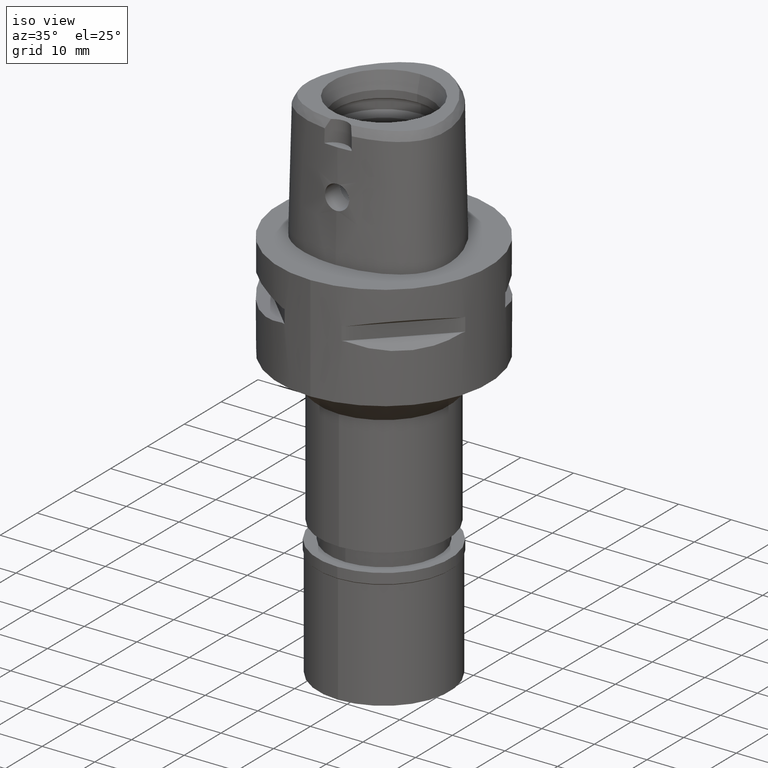
[diagram: clean part render]
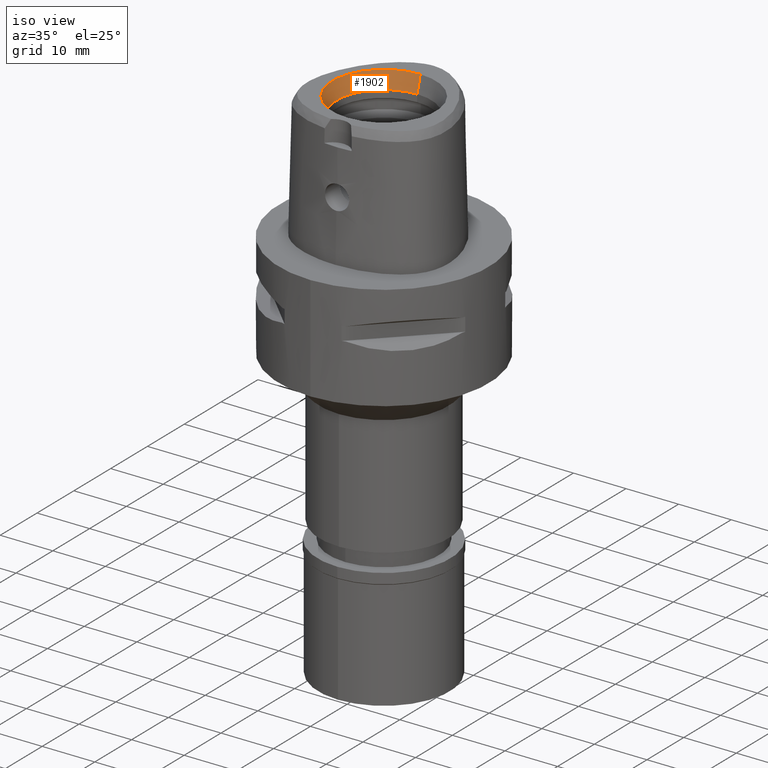
[diagram: same view with one face highlighted and labeled with its STEP entity id]
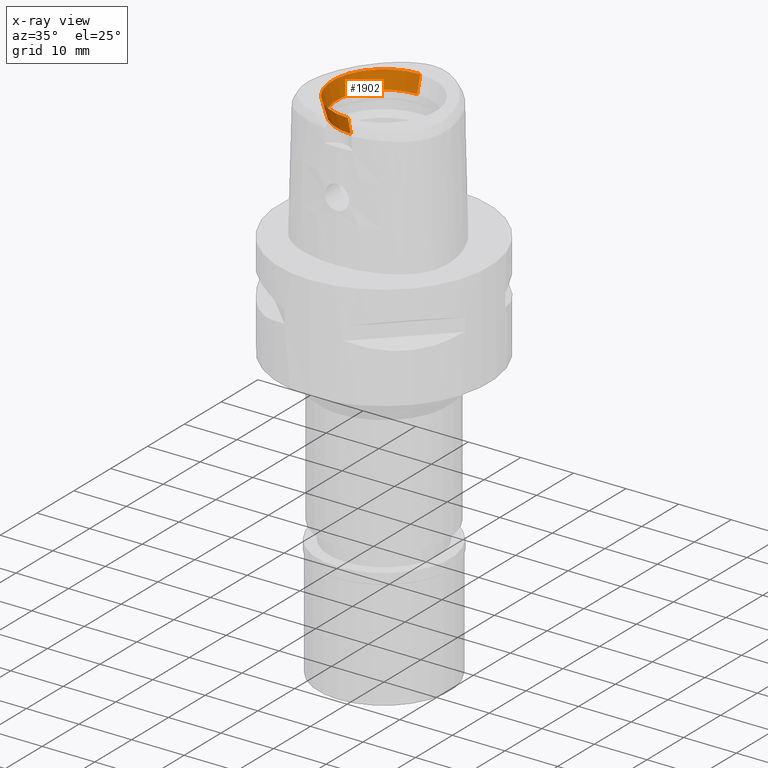
[diagram: x-ray of the same camera — body ghosted, the highlighted face saturated]
A machine part, iso view. The second image highlights one B-rep face of the part: STEP entity #1902.
The next image is the same camera in x-ray: the body ghosted, the highlighted face saturated — about 0% of this face is hidden behind the body in this view.
In plain terms, the highlighted conical surface has half-angle 15 deg.
Its self-contained STEP definition (entity closure, byte-faithful):
#338 = VERTEX_POINT ( 'NONE', #1117 ) ;
#506 = ORIENTED_EDGE ( 'NONE', *, *, #4115, .F. ) ;
#605 = CARTESIAN_POINT ( 'NONE',  ( 0.0000000000000000000, 9.830642496535999086, 24.00000000000000000 ) ) ;
#685 = CARTESIAN_POINT ( 'NONE',  ( 0.0000000000000000000, -9.000000000000000000, 20.89999999999999858 ) ) ;
#825 = AXIS2_PLACEMENT_3D ( 'NONE', #2950, #1760, #2510 ) ;
#886 = CARTESIAN_POINT ( 'NONE',  ( 0.0000000000000000000, 9.000000000000000000, 20.89999999999999858 ) ) ;
#936 = CARTESIAN_POINT ( 'NONE',  ( 0.0000000000000000000, -9.000000000000000000, 20.89999999999999858 ) ) ;
#1065 = EDGE_CURVE ( 'NONE', #338, #1300, #3750, .T. ) ;
#1079 = LINE ( 'NONE', #685, #4731 ) ;
#1117 = CARTESIAN_POINT ( 'NONE',  ( 0.0000000000000000000, 9.000000000000000000, 20.89999999999999858 ) ) ;
#1167 = ORIENTED_EDGE ( 'NONE', *, *, #2032, .F. ) ;
#1184 = ORIENTED_EDGE ( 'NONE', *, *, #4456, .T. ) ;
#1281 = CIRCLE ( 'NONE', #1591, 9.830642496535999086 ) ;
#1300 = VERTEX_POINT ( 'NONE', #605 ) ;
#1351 = CARTESIAN_POINT ( 'NONE',  ( 0.0000000000000000000, 1.499580005555999857E-14, 20.89999999999999858 ) ) ;
#1442 = FACE_OUTER_BOUND ( 'NONE', #3222, .T. ) ;
#1591 = AXIS2_PLACEMENT_3D ( 'NONE', #3534, #2775, #3822 ) ;
#1760 = DIRECTION ( 'NONE',  ( 0.0000000000000000000, 0.0000000000000000000, 1.000000000000000000 ) ) ;
#1902 = ADVANCED_FACE ( 'NONE', ( #1442 ), #2890, .F. ) ;
#2032 = EDGE_CURVE ( 'NONE', #4606, #4153, #1079, .T. ) ;
#2500 = CIRCLE ( 'NONE', #4363, 9.000000000000000000 ) ;
#2510 = DIRECTION ( 'NONE',  ( 0.0000000000000000000, 1.000000000000000000, 0.0000000000000000000 ) ) ;
#2775 = DIRECTION ( 'NONE',  ( 0.0000000000000000000, 0.0000000000000000000, 1.000000000000000000 ) ) ;
#2813 = DIRECTION ( 'NONE',  ( 0.0000000000000000000, 0.0000000000000000000, 1.000000000000000000 ) ) ;
#2890 = CONICAL_SURFACE ( 'NONE', #825, 9.415321248268000431, 0.2617993877991000029 ) ;
#2950 = CARTESIAN_POINT ( 'NONE',  ( 0.0000000000000000000, 1.499580005555999857E-14, 22.45000000000000284 ) ) ;
#3201 = DIRECTION ( 'NONE',  ( 0.0000000000000000000, 1.000000000000000000, 0.0000000000000000000 ) ) ;
#3222 = EDGE_LOOP ( 'NONE', ( #1167, #506, #3260, #1184 ) ) ;
#3260 = ORIENTED_EDGE ( 'NONE', *, *, #1065, .T. ) ;
#3404 = DIRECTION ( 'NONE',  ( 0.0000000000000000000, 0.2588190451024934280, 0.9659258262890755287 ) ) ;
#3534 = CARTESIAN_POINT ( 'NONE',  ( 0.0000000000000000000, 1.499580005555999857E-14, 24.00000000000000000 ) ) ;
#3614 = DIRECTION ( 'NONE',  ( 0.0000000000000000000, -0.2588190451024934280, 0.9659258262890755287 ) ) ;
#3750 = LINE ( 'NONE', #886, #3934 ) ;
#3822 = DIRECTION ( 'NONE',  ( 0.0000000000000000000, 1.000000000000000000, 0.0000000000000000000 ) ) ;
#3882 = CARTESIAN_POINT ( 'NONE',  ( 0.0000000000000000000, -9.830642496535999086, 24.00000000000000000 ) ) ;
#3934 = VECTOR ( 'NONE', #3404, 1000.000000000000227 ) ;
#4115 = EDGE_CURVE ( 'NONE', #338, #4606, #2500, .T. ) ;
#4153 = VERTEX_POINT ( 'NONE', #3882 ) ;
#4363 = AXIS2_PLACEMENT_3D ( 'NONE', #1351, #2813, #3201 ) ;
#4456 = EDGE_CURVE ( 'NONE', #1300, #4153, #1281, .T. ) ;
#4606 = VERTEX_POINT ( 'NONE', #936 ) ;
#4731 = VECTOR ( 'NONE', #3614, 1000.000000000000227 ) ;